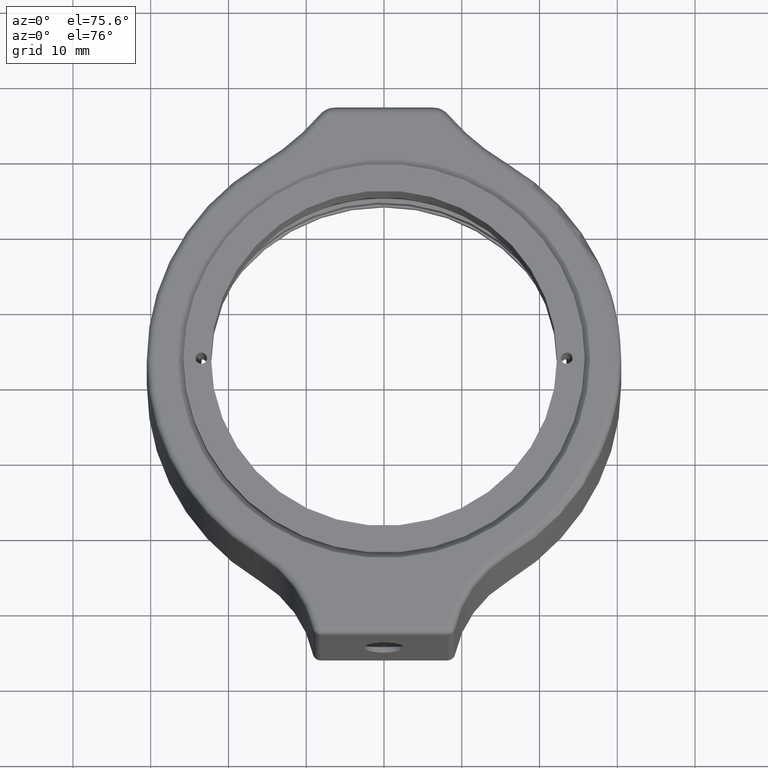
[diagram: clean part render]
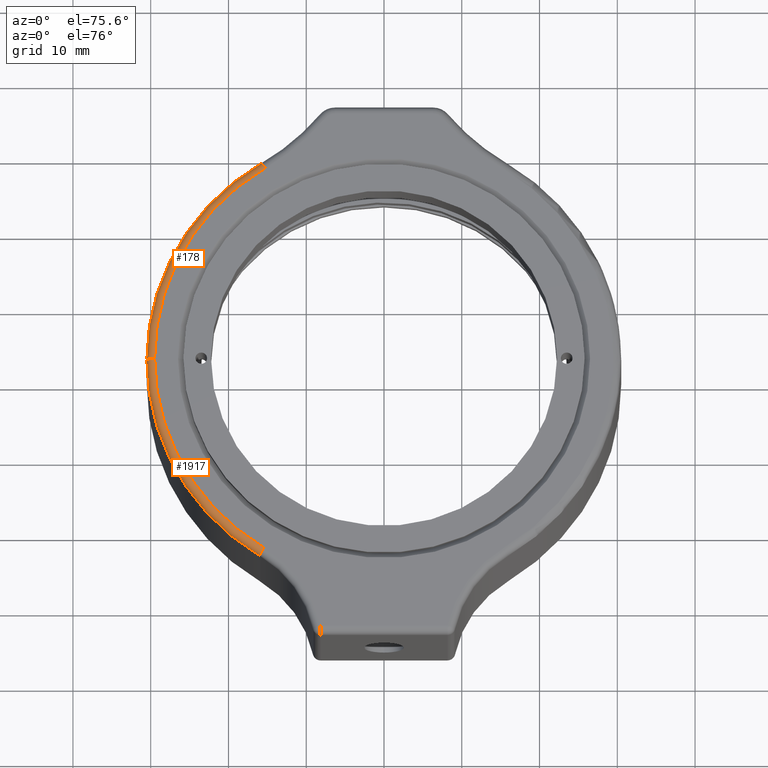
[diagram: same view with one multi-face feature highlighted, each face labeled with its STEP entity id]
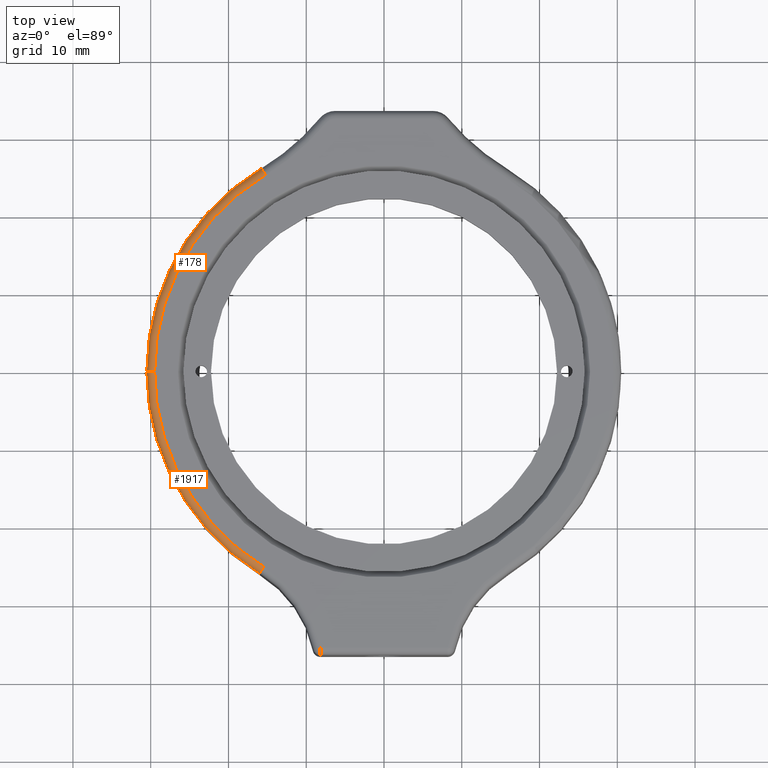
[diagram: same view with one multi-face feature highlighted, each face labeled with its STEP entity id]
A machine part, auxiliary view. The highlighted faces form ONE feature: a constant-radius fillet chain: 2 tangent blend faces with common blend radius 1 mm. The faces share edges in the B-rep.
A second angle (top view) of the same feature is appended — it is thin or edge-on in the first view.
Their STEP definitions:
[1] entity #1917 (Torus):
#64 = DIRECTION ( 'NONE',  ( -1.000000000000000000, 7.771561172376096800E-016, 0.0000000000000000000 ) ) ;
#72 = CIRCLE ( 'NONE', #2244, 30.50000000000000000 ) ;
#89 = DIRECTION ( 'NONE',  ( -1.000000000000000000, 7.771561172376096800E-016, 0.0000000000000000000 ) ) ;
#110 = DIRECTION ( 'NONE',  ( -7.771561172376096800E-016, -1.000000000000000000, -0.0000000000000000000 ) ) ;
#113 = DIRECTION ( 'NONE',  ( 0.5237043442478658300, 0.8519000879304525800, 0.0000000000000000000 ) ) ;
#234 = CARTESIAN_POINT ( 'NONE',  ( 0.0000000000000000000, 0.0000000000000000000, -1.000000000000000900 ) ) ;
#237 = ORIENTED_EDGE ( 'NONE', *, *, #1053, .F. ) ;
#356 = ORIENTED_EDGE ( 'NONE', *, *, #2026, .T. ) ;
#541 = ORIENTED_EDGE ( 'NONE', *, *, #1345, .T. ) ;
#616 = DIRECTION ( 'NONE',  ( 1.000000000000000000, -7.771561172376095800E-016, 0.0000000000000000000 ) ) ;
#737 = CARTESIAN_POINT ( 'NONE',  ( -29.50000000000000000, 2.331468351712829100E-014, 0.0000000000000000000 ) ) ;
#811 = DIRECTION ( 'NONE',  ( -1.000000000000000000, 7.771561172376096800E-016, 0.0000000000000000000 ) ) ;
#812 = DIRECTION ( 'NONE',  ( -0.0000000000000000000, -0.0000000000000000000, 1.000000000000000000 ) ) ;
#839 = VERTEX_POINT ( 'NONE', #1579 ) ;
#877 = EDGE_CURVE ( 'NONE', #2030, #1015, #72, .T. ) ;
#923 = AXIS2_PLACEMENT_3D ( 'NONE', #2191, #110, #616 ) ;
#981 = CARTESIAN_POINT ( 'NONE',  ( -15.97298249955989000, -25.98295268187876800, -1.000000000000000900 ) ) ;
#985 = DIRECTION ( 'NONE',  ( -0.8519000879304525800, 0.5237043442478658300, -1.477811081719659600E-015 ) ) ;
#1015 = VERTEX_POINT ( 'NONE', #1675 ) ;
#1046 = ORIENTED_EDGE ( 'NONE', *, *, #877, .F. ) ;
#1053 = EDGE_CURVE ( 'NONE', #2212, #839, #1326, .T. ) ;
#1203 = EDGE_LOOP ( 'NONE', ( #237, #356, #1046, #541 ) ) ;
#1216 = AXIS2_PLACEMENT_3D ( 'NONE', #1328, #985, #113 ) ;
#1241 = CIRCLE ( 'NONE', #923, 1.000000000000000900 ) ;
#1326 = CIRCLE ( 'NONE', #2169, 29.50000000000000000 ) ;
#1328 = CARTESIAN_POINT ( 'NONE',  ( -15.44927815531202100, -25.13105259394833600, -1.000000000000000900 ) ) ;
#1345 = EDGE_CURVE ( 'NONE', #2030, #839, #1375, .T. ) ;
#1375 = CIRCLE ( 'NONE', #1216, 0.9999999999999973400 ) ;
#1472 = DIRECTION ( 'NONE',  ( 0.0000000000000000000, 0.0000000000000000000, -1.000000000000000000 ) ) ;
#1523 = DIRECTION ( 'NONE',  ( 0.0000000000000000000, 0.0000000000000000000, -1.000000000000000000 ) ) ;
#1579 = CARTESIAN_POINT ( 'NONE',  ( -15.44927815531202200, -25.13105259394833600, 0.0000000000000000000 ) ) ;
#1654 = AXIS2_PLACEMENT_3D ( 'NONE', #1683, #1523, #811 ) ;
#1675 = CARTESIAN_POINT ( 'NONE',  ( -30.50000000000000000, 2.370326157574709500E-014, -1.000000000000000900 ) ) ;
#1683 = CARTESIAN_POINT ( 'NONE',  ( 0.0000000000000000000, 0.0000000000000000000, -1.000000000000000900 ) ) ;
#1748 = TOROIDAL_SURFACE ( 'NONE', #1654, 29.50000000000000000, 1.000000000000000000 ) ;
#1854 = CARTESIAN_POINT ( 'NONE',  ( 0.0000000000000000000, 0.0000000000000000000, 0.0000000000000000000 ) ) ;
#1917 = ADVANCED_FACE ( 'NONE', ( #2214 ), #1748, .T. ) ;
#2026 = EDGE_CURVE ( 'NONE', #2212, #1015, #1241, .T. ) ;
#2030 = VERTEX_POINT ( 'NONE', #981 ) ;
#2169 = AXIS2_PLACEMENT_3D ( 'NONE', #1854, #812, #89 ) ;
#2191 = CARTESIAN_POINT ( 'NONE',  ( -29.50000000000000000, 2.292610545850948600E-014, -1.000000000000000900 ) ) ;
#2212 = VERTEX_POINT ( 'NONE', #737 ) ;
#2214 = FACE_OUTER_BOUND ( 'NONE', #1203, .T. ) ;
#2244 = AXIS2_PLACEMENT_3D ( 'NONE', #234, #1472, #64 ) ;
[2] entity #178 (Torus):
#103 = DIRECTION ( 'NONE',  ( 0.8559209928427905500, 0.5171066176438005000, 1.484786239865765600E-015 ) ) ;
#110 = DIRECTION ( 'NONE',  ( -7.771561172376096800E-016, -1.000000000000000000, -0.0000000000000000000 ) ) ;
#122 = CIRCLE ( 'NONE', #278, 30.50000000000000000 ) ;
#139 = DIRECTION ( 'NONE',  ( -1.000000000000000000, 2.553512956637860000E-015, 0.0000000000000000000 ) ) ;
#178 = ADVANCED_FACE ( 'NONE', ( #1588 ), #1968, .T. ) ;
#190 = EDGE_LOOP ( 'NONE', ( #1199, #842, #1580, #1931 ) ) ;
#278 = AXIS2_PLACEMENT_3D ( 'NONE', #1542, #491, #1027 ) ;
#358 = AXIS2_PLACEMENT_3D ( 'NONE', #1855, #1023, #1010 ) ;
#423 = CIRCLE ( 'NONE', #425, 1.000000000000000700 ) ;
#425 = AXIS2_PLACEMENT_3D ( 'NONE', #1158, #103, #2009 ) ;
#456 = CARTESIAN_POINT ( 'NONE',  ( -15.25464522049216500, 25.24966928886230400, 0.0000000000000000000 ) ) ;
#491 = DIRECTION ( 'NONE',  ( 0.0000000000000000000, 0.0000000000000000000, -1.000000000000000000 ) ) ;
#616 = DIRECTION ( 'NONE',  ( 1.000000000000000000, -7.771561172376095800E-016, 0.0000000000000000000 ) ) ;
#737 = CARTESIAN_POINT ( 'NONE',  ( -29.50000000000000000, 2.331468351712829100E-014, 0.0000000000000000000 ) ) ;
#837 = DIRECTION ( 'NONE',  ( -0.0000000000000000000, -0.0000000000000000000, 1.000000000000000000 ) ) ;
#842 = ORIENTED_EDGE ( 'NONE', *, *, #1464, .F. ) ;
#923 = AXIS2_PLACEMENT_3D ( 'NONE', #2191, #110, #616 ) ;
#1010 = DIRECTION ( 'NONE',  ( -1.000000000000000000, 7.771561172376096800E-016, 0.0000000000000000000 ) ) ;
#1015 = VERTEX_POINT ( 'NONE', #1675 ) ;
#1022 = EDGE_CURVE ( 'NONE', #1451, #1367, #423, .T. ) ;
#1023 = DIRECTION ( 'NONE',  ( 0.0000000000000000000, 0.0000000000000000000, -1.000000000000000000 ) ) ;
#1027 = DIRECTION ( 'NONE',  ( -1.000000000000000000, 7.771561172376096800E-016, 0.0000000000000000000 ) ) ;
#1158 = CARTESIAN_POINT ( 'NONE',  ( -15.25464522049216300, 25.24966928886230400, -1.000000000000000900 ) ) ;
#1199 = ORIENTED_EDGE ( 'NONE', *, *, #2026, .F. ) ;
#1241 = CIRCLE ( 'NONE', #923, 1.000000000000000900 ) ;
#1367 = VERTEX_POINT ( 'NONE', #456 ) ;
#1451 = VERTEX_POINT ( 'NONE', #2177 ) ;
#1464 = EDGE_CURVE ( 'NONE', #1367, #2212, #1775, .T. ) ;
#1477 = EDGE_CURVE ( 'NONE', #1015, #1451, #122, .T. ) ;
#1542 = CARTESIAN_POINT ( 'NONE',  ( 0.0000000000000000000, 0.0000000000000000000, -1.000000000000000900 ) ) ;
#1580 = ORIENTED_EDGE ( 'NONE', *, *, #1022, .F. ) ;
#1588 = FACE_OUTER_BOUND ( 'NONE', #190, .T. ) ;
#1675 = CARTESIAN_POINT ( 'NONE',  ( -30.50000000000000000, 2.370326157574709500E-014, -1.000000000000000900 ) ) ;
#1688 = CARTESIAN_POINT ( 'NONE',  ( 0.0000000000000000000, 0.0000000000000000000, 0.0000000000000000000 ) ) ;
#1775 = CIRCLE ( 'NONE', #2139, 29.50000000000000000 ) ;
#1855 = CARTESIAN_POINT ( 'NONE',  ( 0.0000000000000000000, 0.0000000000000000000, -1.000000000000000900 ) ) ;
#1931 = ORIENTED_EDGE ( 'NONE', *, *, #1477, .F. ) ;
#1968 = TOROIDAL_SURFACE ( 'NONE', #358, 29.50000000000000000, 1.000000000000000000 ) ;
#2009 = DIRECTION ( 'NONE',  ( 0.5171066176438019500, -0.8559209928427896600, 0.0000000000000000000 ) ) ;
#2026 = EDGE_CURVE ( 'NONE', #2212, #1015, #1241, .T. ) ;
#2139 = AXIS2_PLACEMENT_3D ( 'NONE', #1688, #837, #139 ) ;
#2177 = CARTESIAN_POINT ( 'NONE',  ( -15.77175183813596800, 26.10559028170512300, -1.000000000000000900 ) ) ;
#2191 = CARTESIAN_POINT ( 'NONE',  ( -29.50000000000000000, 2.292610545850948600E-014, -1.000000000000000900 ) ) ;
#2212 = VERTEX_POINT ( 'NONE', #737 ) ;